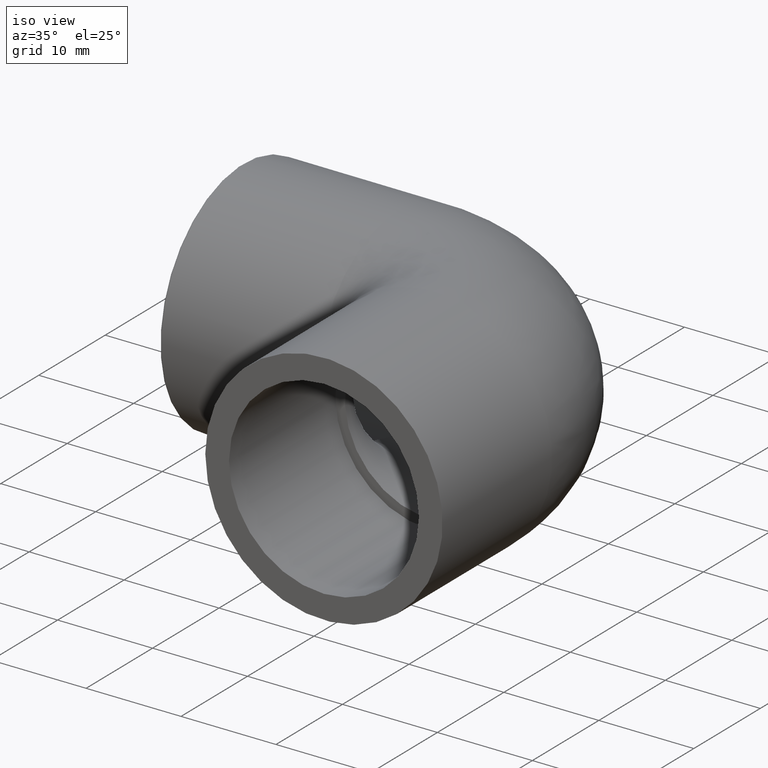
[diagram: clean part render]
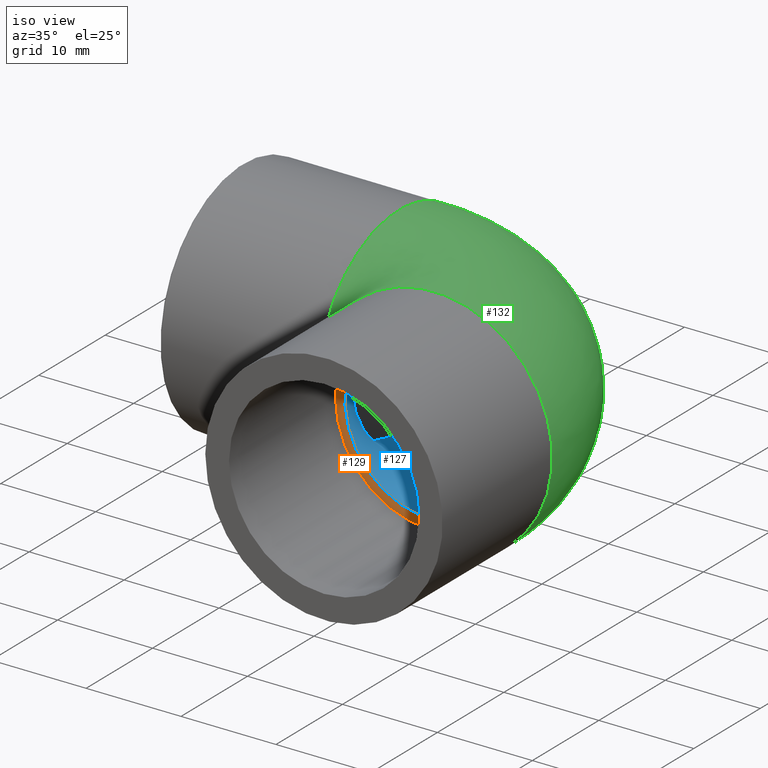
[diagram: same view with three faces highlighted in distinct colors, each labeled with its STEP entity id]
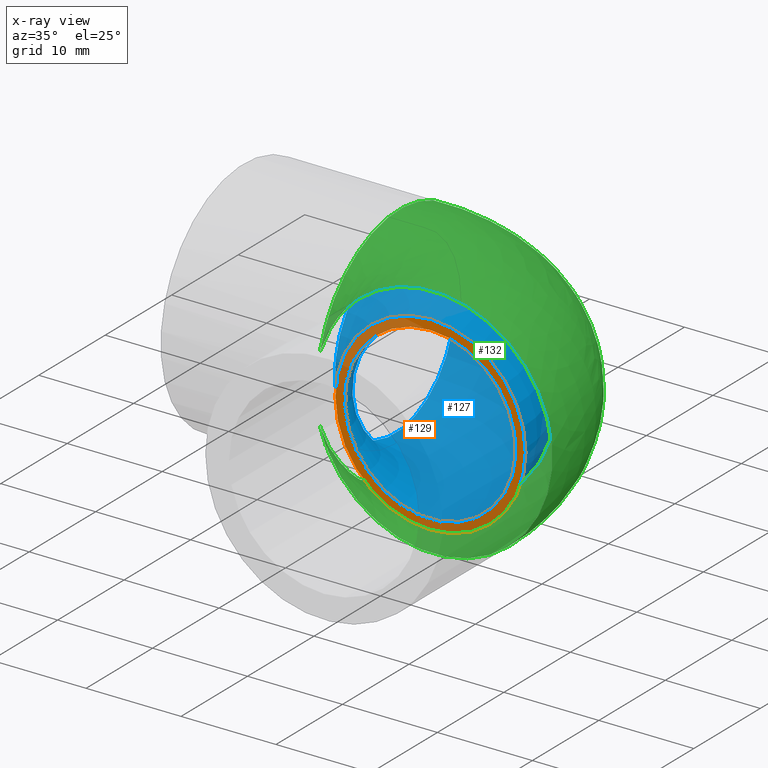
[diagram: x-ray of the same camera — body ghosted, the three highlighted faces saturated]
A machine part, iso view with three faces highlighted in distinct colors.
The next image is the same camera in x-ray (body ghosted, the three faces saturated) — at least one of them is partly hidden behind the body in this view.
Their STEP definitions:

[orange] entity #129 — the highlighted planar face has unit normal (0, 1, 0).
#17=PLANE('',#146);
#27=FACE_BOUND('',#51,.T.);
#37=FACE_OUTER_BOUND('',#50,.T.);
#50=EDGE_LOOP('',(#105));
#51=EDGE_LOOP('',(#106));
#67=CIRCLE('',#141,9.);
#69=CIRCLE('',#144,10.);
#78=VERTEX_POINT('',#210);
#80=VERTEX_POINT('',#215);
#89=EDGE_CURVE('',#78,#78,#67,.T.);
#91=EDGE_CURVE('',#80,#80,#69,.T.);
#105=ORIENTED_EDGE('',*,*,#91,.F.);
#106=ORIENTED_EDGE('',*,*,#89,.T.);
#129=ADVANCED_FACE('',(#37,#27),#17,.F.);
#141=AXIS2_PLACEMENT_3D('',#211,#166,#167);
#144=AXIS2_PLACEMENT_3D('',#216,#172,#173);
#146=AXIS2_PLACEMENT_3D('',#219,#176,#177);
#166=DIRECTION('center_axis',(6.12323399573677E-17,1.,0.));
#167=DIRECTION('ref_axis',(1.,-6.12323399573677E-17,0.));
#172=DIRECTION('center_axis',(6.12323399573677E-17,1.,0.));
#173=DIRECTION('ref_axis',(0.,0.,-1.));
#176=DIRECTION('center_axis',(6.12323399573677E-17,1.,0.));
#177=DIRECTION('ref_axis',(0.,0.,-1.));
#210=CARTESIAN_POINT('',(1.11022302462516E-15,-12.5,9.));
#211=CARTESIAN_POINT('Origin',(0.,-12.5,0.));
#215=CARTESIAN_POINT('',(-1.99005104861445E-15,-12.5,10.));
#216=CARTESIAN_POINT('Origin',(-7.65404249467097E-16,-12.5,0.));
#219=CARTESIAN_POINT('Origin',(-9.50441420237956E-16,-12.5,-4.72128241470665E-16));

[blue] entity #127 — the highlighted toroidal blend (fillet) surface has major radius 12.5 mm and minor (blend) radius 9 mm.
#25=FACE_BOUND('',#47,.T.);
#35=FACE_OUTER_BOUND('',#46,.T.);
#46=EDGE_LOOP('',(#101));
#47=EDGE_LOOP('',(#102));
#67=CIRCLE('',#141,9.);
#68=CIRCLE('',#142,9.);
#78=VERTEX_POINT('',#210);
#79=VERTEX_POINT('',#212);
#89=EDGE_CURVE('',#78,#78,#67,.T.);
#90=EDGE_CURVE('',#79,#79,#68,.T.);
#101=ORIENTED_EDGE('',*,*,#89,.F.);
#102=ORIENTED_EDGE('',*,*,#90,.F.);
#125=TOROIDAL_SURFACE('',#140,12.5,9.);
#127=ADVANCED_FACE('',(#35,#25),#125,.F.);
#140=AXIS2_PLACEMENT_3D('',#209,#164,#165);
#141=AXIS2_PLACEMENT_3D('',#211,#166,#167);
#142=AXIS2_PLACEMENT_3D('',#213,#168,#169);
#164=DIRECTION('center_axis',(0.,0.,-1.));
#165=DIRECTION('ref_axis',(-1.,0.,0.));
#166=DIRECTION('center_axis',(6.12323399573677E-17,1.,0.));
#167=DIRECTION('ref_axis',(1.,-6.12323399573677E-17,0.));
#168=DIRECTION('center_axis',(1.,0.,0.));
#169=DIRECTION('ref_axis',(0.,1.,0.));
#209=CARTESIAN_POINT('Origin',(-12.5,-12.5,0.));
#210=CARTESIAN_POINT('',(1.11022302462516E-15,-12.5,9.));
#211=CARTESIAN_POINT('Origin',(0.,-12.5,0.));
#212=CARTESIAN_POINT('',(-12.5,1.10218211923262E-15,9.));
#213=CARTESIAN_POINT('Origin',(-12.5,0.,0.));

[green] entity #132 — the highlighted face is a freeform B-spline surface patch.
#16=(
BOUNDED_SURFACE()
B_SPLINE_SURFACE(2,2,((#226,#227,#228),(#229,#230,#231),(#232,#233,#234),
(#235,#236,#237),(#238,#239,#240),(#241,#242,#243),(#244,#245,#246),(#247,
#248,#249),(#250,#251,#252)),.UNSPECIFIED.,.F.,.F.,.F.)
B_SPLINE_SURFACE_WITH_KNOTS((3,2,2,2,3),(3,3),(-2.85779854438146,-1.42889927219073,
0.,1.42889927219073,2.85779854438146),(1.5707963267949,3.14159265358979),
 .UNSPECIFIED.)
GEOMETRIC_REPRESENTATION_ITEM()
RATIONAL_B_SPLINE_SURFACE(((1.,0.707106781186548,1.),(0.755453954995707,
0.534186614451662,0.755453954995707),(1.,0.707106781186548,1.),(0.755453954995707,
0.534186614451661,0.755453954995707),(1.,0.707106781186548,1.),(0.755453954995707,
0.534186614451661,0.755453954995707),(1.,0.707106781186548,1.),(0.755453954995707,
0.534186614451662,0.755453954995707),(1.,0.707106781186548,1.)))
REPRESENTATION_ITEM('')
SURFACE()
);
#40=FACE_OUTER_BOUND('',#56,.T.);
#56=EDGE_LOOP('',(#111,#112));
#73=CIRCLE('',#151,12.5);
#74=CIRCLE('',#152,12.5);
#84=VERTEX_POINT('',#253);
#85=VERTEX_POINT('',#254);
#95=EDGE_CURVE('',#84,#85,#73,.T.);
#96=EDGE_CURVE('',#85,#84,#74,.T.);
#111=ORIENTED_EDGE('',*,*,#95,.T.);
#112=ORIENTED_EDGE('',*,*,#96,.T.);
#132=ADVANCED_FACE('',(#40),#16,.F.);
#151=AXIS2_PLACEMENT_3D('',#255,#186,#187);
#152=AXIS2_PLACEMENT_3D('',#256,#188,#189);
#186=DIRECTION('center_axis',(1.,0.,0.));
#187=DIRECTION('ref_axis',(0.,0.,-1.));
#188=DIRECTION('center_axis',(6.12323399573677E-17,1.,0.));
#189=DIRECTION('ref_axis',(0.,0.,-1.));
#226=CARTESIAN_POINT('Ctrl Pts',(-12.,-12.,3.50000000000003));
#227=CARTESIAN_POINT('Ctrl Pts',(-12.,-12.,3.50000000000003));
#228=CARTESIAN_POINT('Ctrl Pts',(-12.,-12.,3.50000000000003));
#229=CARTESIAN_POINT('Ctrl Pts',(-12.,-8.96446609406724,13.9075448203408));
#230=CARTESIAN_POINT('Ctrl Pts',(-8.96446609406724,-8.96446609406724,13.9075448203408));
#231=CARTESIAN_POINT('Ctrl Pts',(-8.96446609406724,-12.,13.9075448203408));
#232=CARTESIAN_POINT('Ctrl Pts',(-12.,1.76776695296638,12.3743686707646));
#233=CARTESIAN_POINT('Ctrl Pts',(1.76776695296638,1.76776695296638,12.3743686707646));
#234=CARTESIAN_POINT('Ctrl Pts',(1.76776695296638,-12.,12.3743686707646));
#235=CARTESIAN_POINT('Ctrl Pts',(-12.,12.5,10.8411925211883));
#236=CARTESIAN_POINT('Ctrl Pts',(12.5,12.5,10.8411925211883));
#237=CARTESIAN_POINT('Ctrl Pts',(12.5,-12.,10.8411925211883));
#238=CARTESIAN_POINT('Ctrl Pts',(-12.,12.5,0.));
#239=CARTESIAN_POINT('Ctrl Pts',(12.5,12.5,0.));
#240=CARTESIAN_POINT('Ctrl Pts',(12.5,-12.,0.));
#241=CARTESIAN_POINT('Ctrl Pts',(-12.,12.5,-10.8411925211883));
#242=CARTESIAN_POINT('Ctrl Pts',(12.5,12.5,-10.8411925211883));
#243=CARTESIAN_POINT('Ctrl Pts',(12.5,-12.,-10.8411925211883));
#244=CARTESIAN_POINT('Ctrl Pts',(-12.,1.76776695296638,-12.3743686707646));
#245=CARTESIAN_POINT('Ctrl Pts',(1.76776695296638,1.76776695296638,-12.3743686707646));
#246=CARTESIAN_POINT('Ctrl Pts',(1.76776695296638,-12.,-12.3743686707646));
#247=CARTESIAN_POINT('Ctrl Pts',(-12.,-8.96446609406724,-13.9075448203408));
#248=CARTESIAN_POINT('Ctrl Pts',(-8.96446609406724,-8.96446609406724,-13.9075448203408));
#249=CARTESIAN_POINT('Ctrl Pts',(-8.96446609406724,-12.,-13.9075448203408));
#250=CARTESIAN_POINT('Ctrl Pts',(-12.,-12.,-3.50000000000003));
#251=CARTESIAN_POINT('Ctrl Pts',(-12.,-12.,-3.50000000000003));
#252=CARTESIAN_POINT('Ctrl Pts',(-12.,-12.,-3.50000000000003));
#253=CARTESIAN_POINT('',(-12.,-12.,-3.50000000000002));
#254=CARTESIAN_POINT('',(-12.,-12.,3.50000000000002));
#255=CARTESIAN_POINT('Origin',(-12.,0.,0.));
#256=CARTESIAN_POINT('Origin',(-7.34788079488411E-16,-12.,0.));